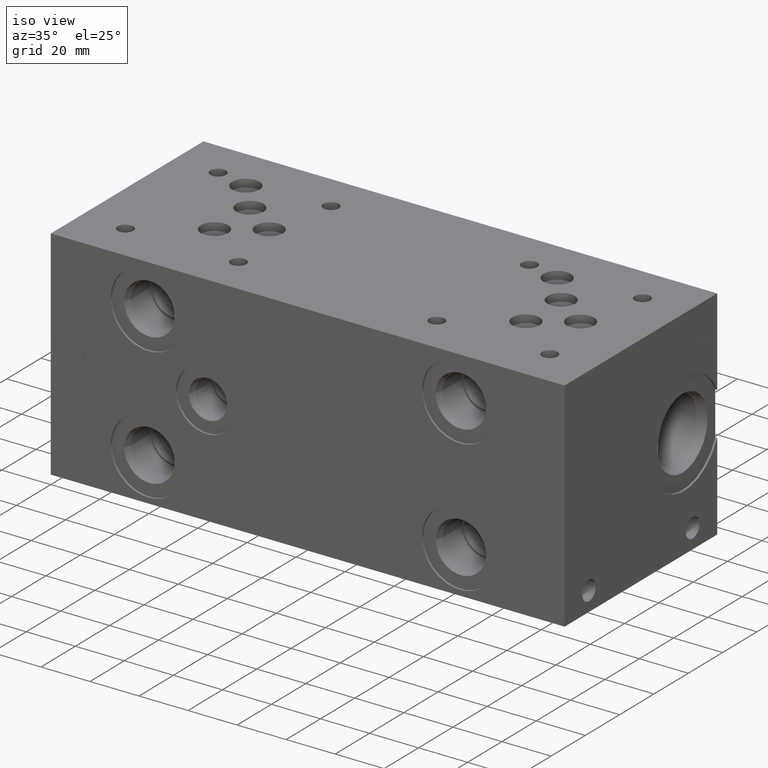
[diagram: clean part render]
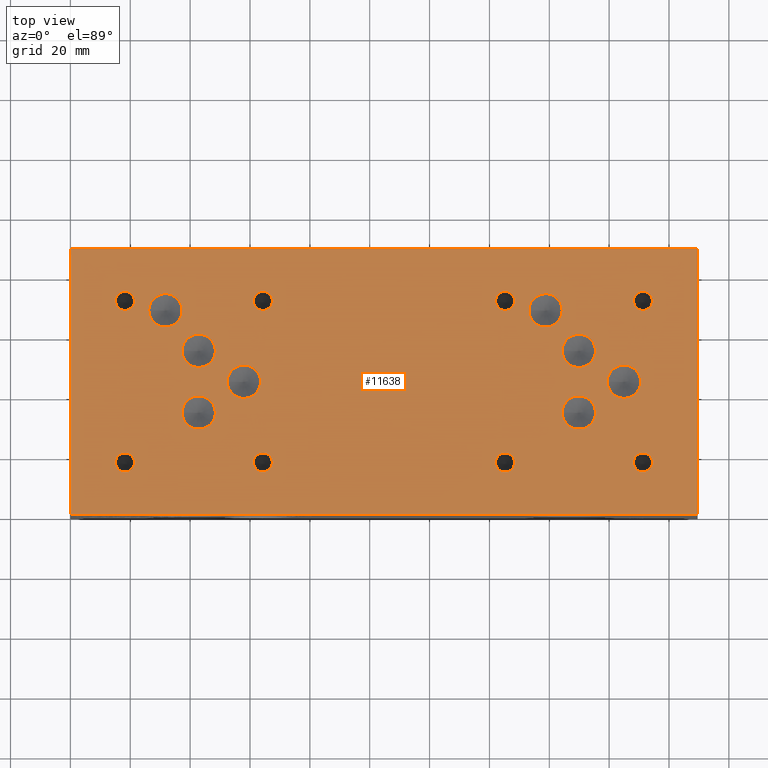
[diagram: tour spotlight — one face highlighted and labeled with its STEP entity id]
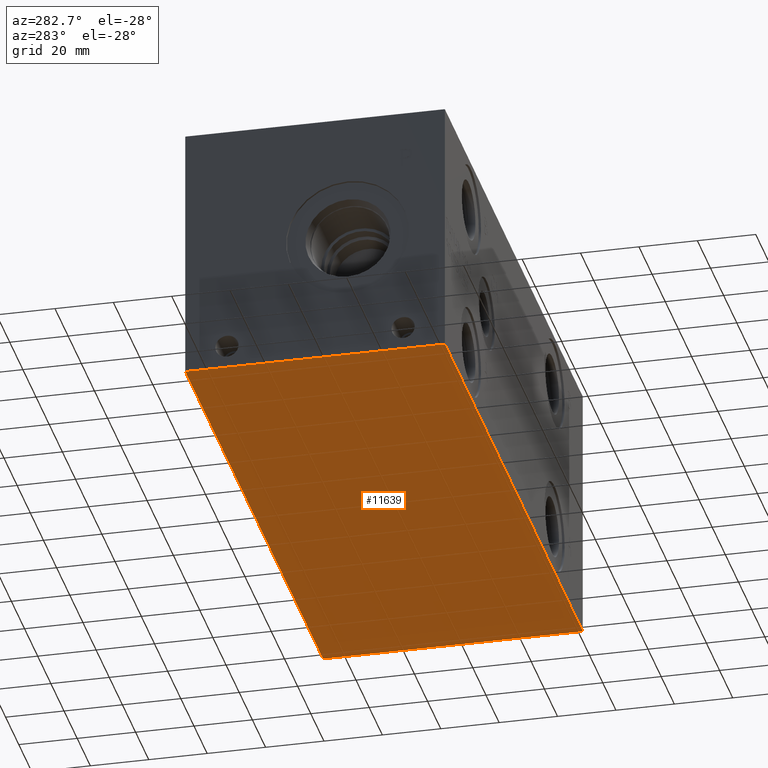
[diagram: tour spotlight — one face highlighted and labeled with its STEP entity id]
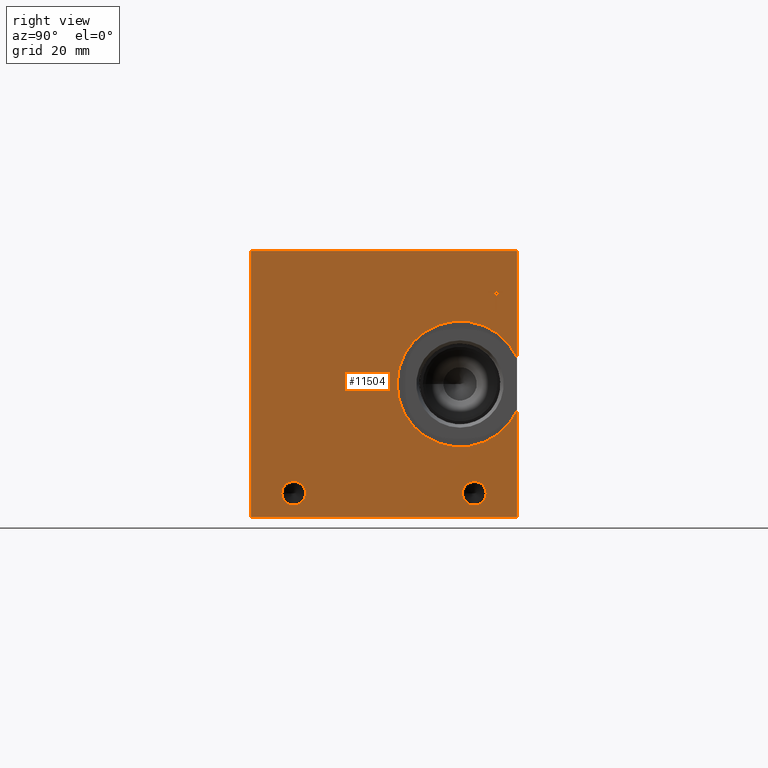
[diagram: tour spotlight — one face highlighted and labeled with its STEP entity id]
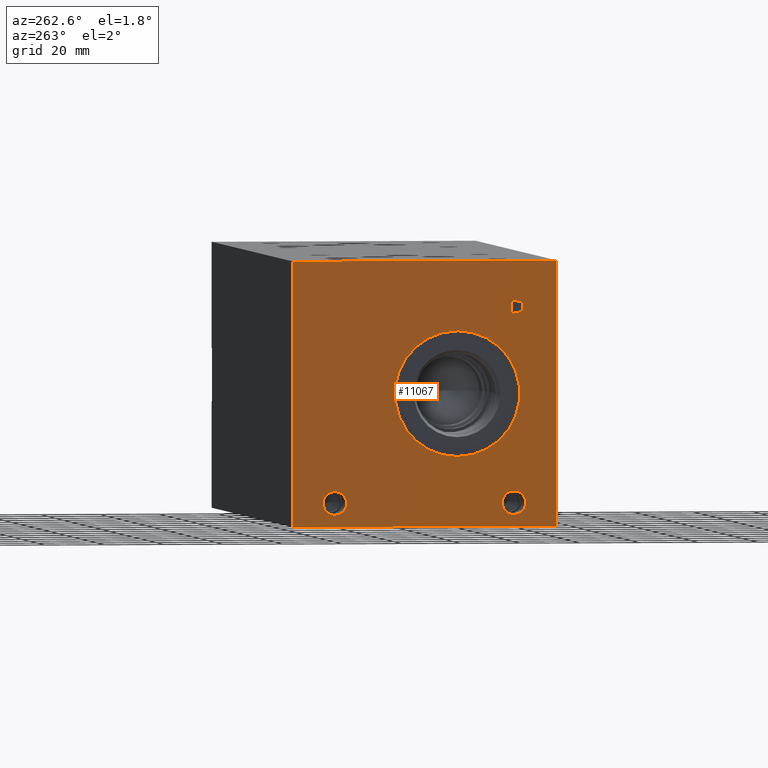
[diagram: tour spotlight — one face highlighted and labeled with its STEP entity id]
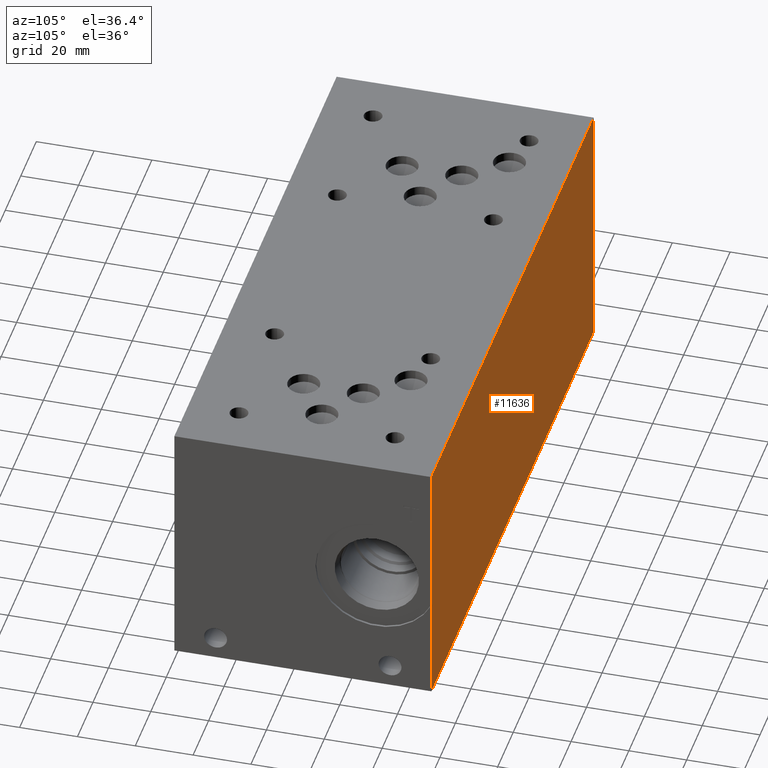
[diagram: tour spotlight — one face highlighted and labeled with its STEP entity id]
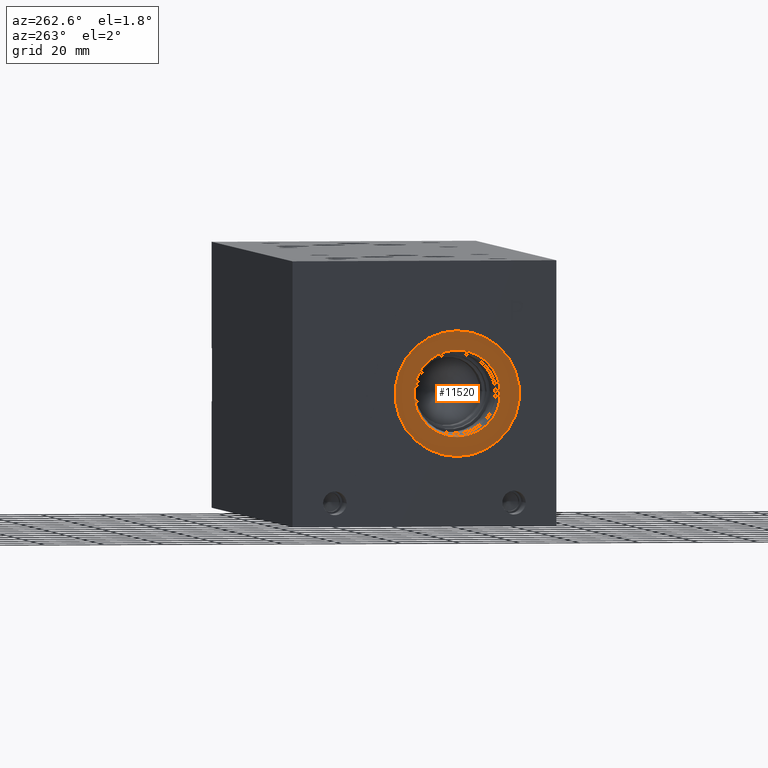
[diagram: tour spotlight — one face highlighted and labeled with its STEP entity id]
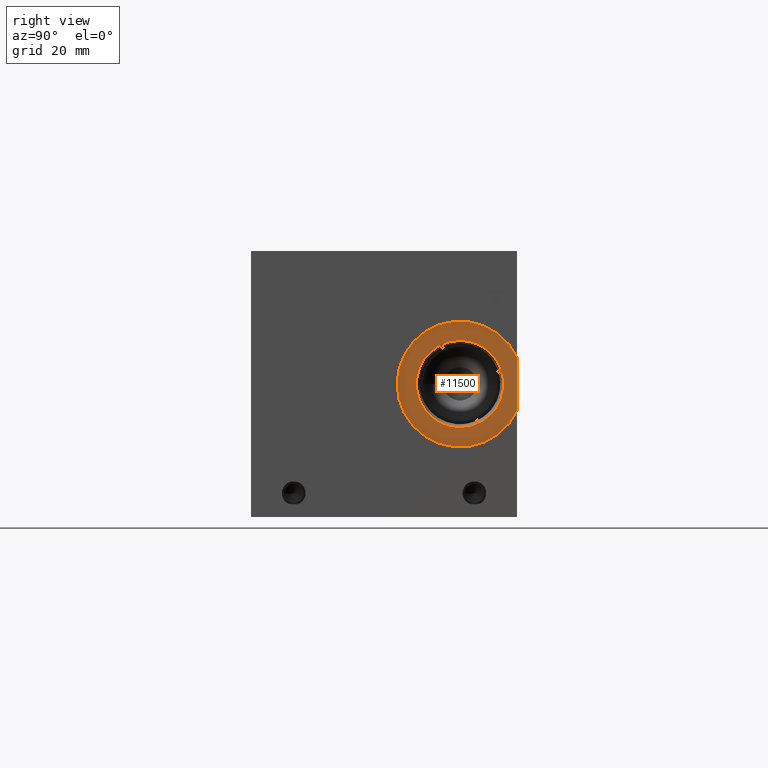
[diagram: tour spotlight — one face highlighted and labeled with its STEP entity id]
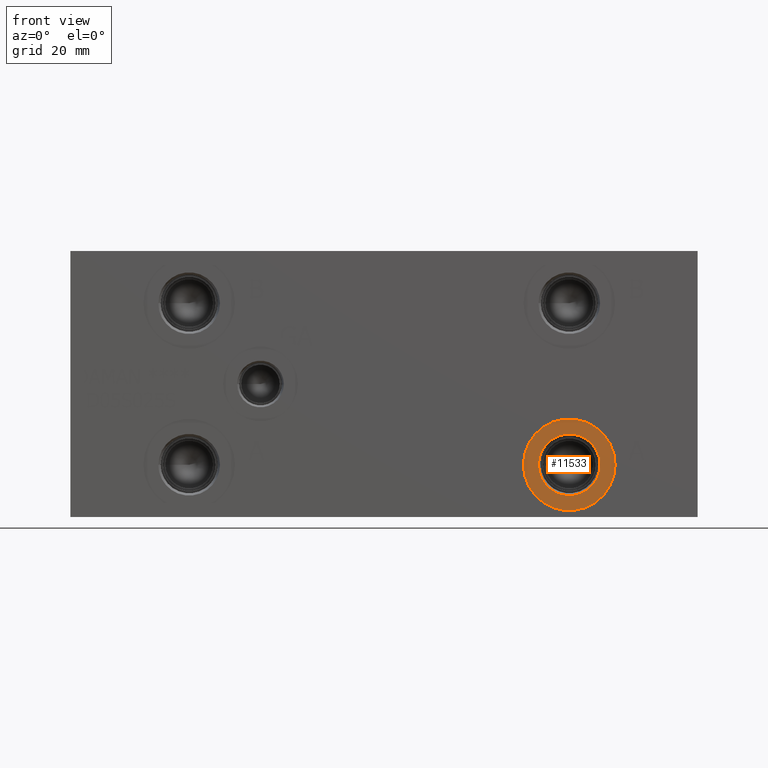
[diagram: tour spotlight — one face highlighted and labeled with its STEP entity id]
A machine part: a face-by-face anatomy tour. The part has 599 B-rep faces; the first image is the clean iso view, then the 8 largest visible faces are spotlighted one at a time (largest first), each with its STEP entity span.

Face 1 — top view, entity #11638. In plain terms, the highlighted planar face has unit normal (0, 0, 1).
Definition (entity closure, byte-faithful):
#300=CIRCLE('',#12213,3.175);
#301=CIRCLE('',#12214,3.175);
#307=CIRCLE('',#12224,3.175);
#308=CIRCLE('',#12225,3.175);
#314=CIRCLE('',#12235,3.175);
#315=CIRCLE('',#12236,3.175);
#321=CIRCLE('',#12246,3.175);
#322=CIRCLE('',#12247,3.175);
#325=CIRCLE('',#12253,5.5626);
#326=CIRCLE('',#12254,5.5626);
#329=CIRCLE('',#12259,5.5626);
#330=CIRCLE('',#12260,5.5626);
#333=CIRCLE('',#12265,5.5626);
#334=CIRCLE('',#12266,5.5626);
#337=CIRCLE('',#12271,5.5626);
#338=CIRCLE('',#12272,5.5626);
#341=CIRCLE('',#12277,5.5626);
#342=CIRCLE('',#12278,5.5626);
#345=CIRCLE('',#12283,5.5626);
#346=CIRCLE('',#12284,5.5626);
#349=CIRCLE('',#12289,5.5626);
#350=CIRCLE('',#12290,5.5626);
#353=CIRCLE('',#12295,5.5626);
#354=CIRCLE('',#12296,5.5626);
#360=CIRCLE('',#12305,3.175);
#361=CIRCLE('',#12306,3.175);
#367=CIRCLE('',#12316,3.175);
#368=CIRCLE('',#12317,3.175);
#374=CIRCLE('',#12327,3.175);
#375=CIRCLE('',#12328,3.175);
#381=CIRCLE('',#12338,3.175);
#382=CIRCLE('',#12339,3.175);
#459=FACE_BOUND('',#2225,.T.);
#460=FACE_BOUND('',#2226,.T.);
#461=FACE_BOUND('',#2227,.T.);
#462=FACE_BOUND('',#2228,.T.);
#463=FACE_BOUND('',#2229,.T.);
#464=FACE_BOUND('',#2230,.T.);
#465=FACE_BOUND('',#2231,.T.);
#466=FACE_BOUND('',#2232,.T.);
#467=FACE_BOUND('',#2233,.T.);
#468=FACE_BOUND('',#2234,.T.);
#469=FACE_BOUND('',#2235,.T.);
#470=FACE_BOUND('',#2236,.T.);
#471=FACE_BOUND('',#2237,.T.);
#472=FACE_BOUND('',#2238,.T.);
#473=FACE_BOUND('',#2239,.T.);
#474=FACE_BOUND('',#2240,.T.);
#1549=FACE_OUTER_BOUND('',#2224,.T.);
#2224=EDGE_LOOP('',(#10241,#10242,#10243,#10244));
#2225=EDGE_LOOP('',(#10245,#10246));
#2226=EDGE_LOOP('',(#10247,#10248));
#2227=EDGE_LOOP('',(#10249,#10250));
#2228=EDGE_LOOP('',(#10251,#10252));
#2229=EDGE_LOOP('',(#10253,#10254));
#2230=EDGE_LOOP('',(#10255,#10256));
#2231=EDGE_LOOP('',(#10257,#10258));
#2232=EDGE_LOOP('',(#10259,#10260));
#2233=EDGE_LOOP('',(#10261,#10262));
#2234=EDGE_LOOP('',(#10263,#10264));
#2235=EDGE_LOOP('',(#10265,#10266));
#2236=EDGE_LOOP('',(#10267,#10268));
#2237=EDGE_LOOP('',(#10269,#10270));
#2238=EDGE_LOOP('',(#10271,#10272));
#2239=EDGE_LOOP('',(#10273,#10274));
#2240=EDGE_LOOP('',(#10275,#10276));
#2300=LINE('',#15034,#3344);
#2561=LINE('',#17293,#3605);
#3175=LINE('',#19463,#4219);
#3285=LINE('',#20162,#4329);
#3344=VECTOR('',#12444,10.);
#3605=VECTOR('',#12841,10.);
#4219=VECTOR('',#13965,10.);
#4329=VECTOR('',#14769,10.);
#4380=VERTEX_POINT('',#15031);
#4381=VERTEX_POINT('',#15033);
#4695=VERTEX_POINT('',#17291);
#5196=VERTEX_POINT('',#19461);
#5341=VERTEX_POINT('',#19894);
#5342=VERTEX_POINT('',#19895);
#5349=VERTEX_POINT('',#19916);
#5350=VERTEX_POINT('',#19917);
#5357=VERTEX_POINT('',#19938);
#5358=VERTEX_POINT('',#19939);
#5365=VERTEX_POINT('',#19960);
#5366=VERTEX_POINT('',#19961);
#5370=VERTEX_POINT('',#19975);
#5371=VERTEX_POINT('',#19976);
#5375=VERTEX_POINT('',#19988);
#5376=VERTEX_POINT('',#19989);
#5380=VERTEX_POINT('',#20001);
#5381=VERTEX_POINT('',#20002);
#5385=VERTEX_POINT('',#20014);
#5386=VERTEX_POINT('',#20015);
#5390=VERTEX_POINT('',#20027);
#5391=VERTEX_POINT('',#20028);
#5395=VERTEX_POINT('',#20040);
#5396=VERTEX_POINT('',#20041);
#5400=VERTEX_POINT('',#20053);
#5401=VERTEX_POINT('',#20054);
#5405=VERTEX_POINT('',#20066);
#5406=VERTEX_POINT('',#20067);
#5413=VERTEX_POINT('',#20086);
#5414=VERTEX_POINT('',#20087);
#5421=VERTEX_POINT('',#20108);
#5422=VERTEX_POINT('',#20109);
#5429=VERTEX_POINT('',#20130);
#5430=VERTEX_POINT('',#20131);
#5437=VERTEX_POINT('',#20152);
#5438=VERTEX_POINT('',#20153);
#5513=EDGE_CURVE('',#4381,#4380,#2300,.T.);
#5982=EDGE_CURVE('',#4380,#4695,#2561,.T.);
#6727=EDGE_CURVE('',#4695,#5196,#3175,.T.);
#6929=EDGE_CURVE('',#5341,#5342,#300,.T.);
#6930=EDGE_CURVE('',#5342,#5341,#301,.T.);
#6939=EDGE_CURVE('',#5349,#5350,#307,.T.);
#6940=EDGE_CURVE('',#5350,#5349,#308,.T.);
#6949=EDGE_CURVE('',#5357,#5358,#314,.T.);
#6950=EDGE_CURVE('',#5358,#5357,#315,.T.);
#6959=EDGE_CURVE('',#5365,#5366,#321,.T.);
#6960=EDGE_CURVE('',#5366,#5365,#322,.T.);
#6966=EDGE_CURVE('',#5370,#5371,#325,.T.);
#6967=EDGE_CURVE('',#5371,#5370,#326,.T.);
#6972=EDGE_CURVE('',#5375,#5376,#329,.T.);
#6973=EDGE_CURVE('',#5376,#5375,#330,.T.);
#6978=EDGE_CURVE('',#5380,#5381,#333,.T.);
#6979=EDGE_CURVE('',#5381,#5380,#334,.T.);
#6984=EDGE_CURVE('',#5385,#5386,#337,.T.);
#6985=EDGE_CURVE('',#5386,#5385,#338,.T.);
#6990=EDGE_CURVE('',#5390,#5391,#341,.T.);
#6991=EDGE_CURVE('',#5391,#5390,#342,.T.);
#6996=EDGE_CURVE('',#5395,#5396,#345,.T.);
#6997=EDGE_CURVE('',#5396,#5395,#346,.T.);
#7002=EDGE_CURVE('',#5400,#5401,#349,.T.);
#7003=EDGE_CURVE('',#5401,#5400,#350,.T.);
#7008=EDGE_CURVE('',#5405,#5406,#353,.T.);
#7009=EDGE_CURVE('',#5406,#5405,#354,.T.);
#7017=EDGE_CURVE('',#5413,#5414,#360,.T.);
#7018=EDGE_CURVE('',#5414,#5413,#361,.T.);
#7027=EDGE_CURVE('',#5421,#5422,#367,.T.);
#7028=EDGE_CURVE('',#5422,#5421,#368,.T.);
#7037=EDGE_CURVE('',#5429,#5430,#374,.T.);
#7038=EDGE_CURVE('',#5430,#5429,#375,.T.);
#7047=EDGE_CURVE('',#5437,#5438,#381,.T.);
#7048=EDGE_CURVE('',#5438,#5437,#382,.T.);
#7052=EDGE_CURVE('',#5196,#4381,#3285,.T.);
#10241=ORIENTED_EDGE('',*,*,#5982,.T.);
#10242=ORIENTED_EDGE('',*,*,#6727,.T.);
#10243=ORIENTED_EDGE('',*,*,#7052,.T.);
#10244=ORIENTED_EDGE('',*,*,#5513,.T.);
#10245=ORIENTED_EDGE('',*,*,#6929,.T.);
#10246=ORIENTED_EDGE('',*,*,#6930,.T.);
#10247=ORIENTED_EDGE('',*,*,#6939,.T.);
#10248=ORIENTED_EDGE('',*,*,#6940,.T.);
#10249=ORIENTED_EDGE('',*,*,#6949,.T.);
#10250=ORIENTED_EDGE('',*,*,#6950,.T.);
#10251=ORIENTED_EDGE('',*,*,#6959,.T.);
#10252=ORIENTED_EDGE('',*,*,#6960,.T.);
#10253=ORIENTED_EDGE('',*,*,#6966,.T.);
#10254=ORIENTED_EDGE('',*,*,#6967,.T.);
#10255=ORIENTED_EDGE('',*,*,#6972,.T.);
#10256=ORIENTED_EDGE('',*,*,#6973,.T.);
#10257=ORIENTED_EDGE('',*,*,#6978,.T.);
#10258=ORIENTED_EDGE('',*,*,#6979,.T.);
#10259=ORIENTED_EDGE('',*,*,#6984,.T.);
#10260=ORIENTED_EDGE('',*,*,#6985,.T.);
#10261=ORIENTED_EDGE('',*,*,#6990,.T.);
#10262=ORIENTED_EDGE('',*,*,#6991,.T.);
#10263=ORIENTED_EDGE('',*,*,#6996,.T.);
#10264=ORIENTED_EDGE('',*,*,#6997,.T.);
#10265=ORIENTED_EDGE('',*,*,#7002,.T.);
#10266=ORIENTED_EDGE('',*,*,#7003,.T.);
#10267=ORIENTED_EDGE('',*,*,#7008,.T.);
#10268=ORIENTED_EDGE('',*,*,#7009,.T.);
#10269=ORIENTED_EDGE('',*,*,#7017,.T.);
#10270=ORIENTED_EDGE('',*,*,#7018,.T.);
#10271=ORIENTED_EDGE('',*,*,#7027,.T.);
#10272=ORIENTED_EDGE('',*,*,#7028,.T.);
#10273=ORIENTED_EDGE('',*,*,#7037,.T.);
#10274=ORIENTED_EDGE('',*,*,#7038,.T.);
#10275=ORIENTED_EDGE('',*,*,#7047,.T.);
#10276=ORIENTED_EDGE('',*,*,#7048,.T.);
#10602=PLANE('',#12344);
#11638=ADVANCED_FACE('',(#1549,#459,#460,#461,#462,#463,#464,#465,#466,
#467,#468,#469,#470,#471,#472,#473,#474),#10602,.T.);
#12213=AXIS2_PLACEMENT_3D('',#19896,#14469,#14470);
#12214=AXIS2_PLACEMENT_3D('',#19897,#14471,#14472);
#12224=AXIS2_PLACEMENT_3D('',#19918,#14494,#14495);
#12225=AXIS2_PLACEMENT_3D('',#19919,#14496,#14497);
#12235=AXIS2_PLACEMENT_3D('',#19940,#14519,#14520);
#12236=AXIS2_PLACEMENT_3D('',#19941,#14521,#14522);
#12246=AXIS2_PLACEMENT_3D('',#19962,#14544,#14545);
#12247=AXIS2_PLACEMENT_3D('',#19963,#14546,#14547);
#12253=AXIS2_PLACEMENT_3D('',#19977,#14561,#14562);
#12254=AXIS2_PLACEMENT_3D('',#19978,#14563,#14564);
#12259=AXIS2_PLACEMENT_3D('',#19990,#14575,#14576);
#12260=AXIS2_PLACEMENT_3D('',#19991,#14577,#14578);
#12265=AXIS2_PLACEMENT_3D('',#20003,#14589,#14590);
#12266=AXIS2_PLACEMENT_3D('',#20004,#14591,#14592);
#12271=AXIS2_PLACEMENT_3D('',#20016,#14603,#14604);
#12272=AXIS2_PLACEMENT_3D('',#20017,#14605,#14606);
#12277=AXIS2_PLACEMENT_3D('',#20029,#14617,#14618);
#12278=AXIS2_PLACEMENT_3D('',#20030,#14619,#14620);
#12283=AXIS2_PLACEMENT_3D('',#20042,#14631,#14632);
#12284=AXIS2_PLACEMENT_3D('',#20043,#14633,#14634);
#12289=AXIS2_PLACEMENT_3D('',#20055,#14645,#14646);
#12290=AXIS2_PLACEMENT_3D('',#20056,#14647,#14648);
#12295=AXIS2_PLACEMENT_3D('',#20068,#14659,#14660);
#12296=AXIS2_PLACEMENT_3D('',#20069,#14661,#14662);
#12305=AXIS2_PLACEMENT_3D('',#20088,#14681,#14682);
#12306=AXIS2_PLACEMENT_3D('',#20089,#14683,#14684);
#12316=AXIS2_PLACEMENT_3D('',#20110,#14706,#14707);
#12317=AXIS2_PLACEMENT_3D('',#20111,#14708,#14709);
#12327=AXIS2_PLACEMENT_3D('',#20132,#14731,#14732);
#12328=AXIS2_PLACEMENT_3D('',#20133,#14733,#14734);
#12338=AXIS2_PLACEMENT_3D('',#20154,#14756,#14757);
#12339=AXIS2_PLACEMENT_3D('',#20155,#14758,#14759);
#12344=AXIS2_PLACEMENT_3D('',#20164,#14772,#14773);
#12444=DIRECTION('',(0.,-1.,0.));
#12841=DIRECTION('',(1.,0.,0.));
#13965=DIRECTION('',(0.,1.,0.));
#14469=DIRECTION('center_axis',(0.,0.,-1.));
#14470=DIRECTION('ref_axis',(1.,0.,0.));
#14471=DIRECTION('center_axis',(0.,0.,-1.));
#14472=DIRECTION('ref_axis',(1.,0.,0.));
#14494=DIRECTION('center_axis',(0.,0.,-1.));
#14495=DIRECTION('ref_axis',(1.,0.,0.));
#14496=DIRECTION('center_axis',(0.,0.,-1.));
#14497=DIRECTION('ref_axis',(1.,0.,0.));
#14519=DIRECTION('center_axis',(0.,0.,-1.));
#14520=DIRECTION('ref_axis',(1.,0.,0.));
#14521=DIRECTION('center_axis',(0.,0.,-1.));
#14522=DIRECTION('ref_axis',(1.,0.,0.));
#14544=DIRECTION('center_axis',(0.,0.,-1.));
#14545=DIRECTION('ref_axis',(1.,0.,0.));
#14546=DIRECTION('center_axis',(0.,0.,-1.));
#14547=DIRECTION('ref_axis',(1.,0.,0.));
#14561=DIRECTION('center_axis',(0.,0.,-1.));
#14562=DIRECTION('ref_axis',(1.,0.,0.));
#14563=DIRECTION('center_axis',(0.,0.,-1.));
#14564=DIRECTION('ref_axis',(1.,0.,0.));
#14575=DIRECTION('center_axis',(0.,0.,-1.));
#14576=DIRECTION('ref_axis',(1.,0.,0.));
#14577=DIRECTION('center_axis',(0.,0.,-1.));
#14578=DIRECTION('ref_axis',(1.,0.,0.));
#14589=DIRECTION('center_axis',(0.,0.,-1.));
#14590=DIRECTION('ref_axis',(1.,0.,0.));
#14591=DIRECTION('center_axis',(0.,0.,-1.));
#14592=DIRECTION('ref_axis',(1.,0.,0.));
#14603=DIRECTION('center_axis',(0.,0.,-1.));
#14604=DIRECTION('ref_axis',(1.,0.,0.));
#14605=DIRECTION('center_axis',(0.,0.,-1.));
#14606=DIRECTION('ref_axis',(1.,0.,0.));
#14617=DIRECTION('center_axis',(0.,0.,-1.));
#14618=DIRECTION('ref_axis',(1.,0.,0.));
#14619=DIRECTION('center_axis',(0.,0.,-1.));
#14620=DIRECTION('ref_axis',(1.,0.,0.));
#14631=DIRECTION('center_axis',(0.,0.,-1.));
#14632=DIRECTION('ref_axis',(1.,0.,0.));
#14633=DIRECTION('center_axis',(0.,0.,-1.));
#14634=DIRECTION('ref_axis',(1.,0.,0.));
#14645=DIRECTION('center_axis',(0.,0.,-1.));
#14646=DIRECTION('ref_axis',(1.,0.,0.));
#14647=DIRECTION('center_axis',(0.,0.,-1.));
#14648=DIRECTION('ref_axis',(1.,0.,0.));
#14659=DIRECTION('center_axis',(0.,0.,-1.));
#14660=DIRECTION('ref_axis',(1.,0.,0.));
#14661=DIRECTION('center_axis',(0.,0.,-1.));
#14662=DIRECTION('ref_axis',(1.,0.,0.));
#14681=DIRECTION('center_axis',(0.,0.,-1.));
#14682=DIRECTION('ref_axis',(1.,0.,0.));
#14683=DIRECTION('center_axis',(0.,0.,-1.));
#14684=DIRECTION('ref_axis',(1.,0.,0.));
#14706=DIRECTION('center_axis',(0.,0.,-1.));
#14707=DIRECTION('ref_axis',(1.,0.,0.));
#14708=DIRECTION('center_axis',(0.,0.,-1.));
#14709=DIRECTION('ref_axis',(1.,0.,0.));
#14731=DIRECTION('center_axis',(0.,0.,-1.));
#14732=DIRECTION('ref_axis',(1.,0.,0.));
#14733=DIRECTION('center_axis',(0.,0.,-1.));
#14734=DIRECTION('ref_axis',(1.,0.,0.));
#14756=DIRECTION('center_axis',(0.,0.,-1.));
#14757=DIRECTION('ref_axis',(1.,0.,0.));
#14758=DIRECTION('center_axis',(0.,0.,-1.));
#14759=DIRECTION('ref_axis',(1.,0.,0.));
#14769=DIRECTION('',(-1.,0.,0.));
#14772=DIRECTION('center_axis',(0.,0.,1.));
#14773=DIRECTION('ref_axis',(1.,0.,0.));
#15031=CARTESIAN_POINT('',(0.,0.,88.9));
#15033=CARTESIAN_POINT('',(0.,88.9,88.9));
#15034=CARTESIAN_POINT('',(0.,88.9,88.9));
#17291=CARTESIAN_POINT('',(209.55,0.,88.9));
#17293=CARTESIAN_POINT('',(0.,0.,88.9));
#19461=CARTESIAN_POINT('',(209.55,88.9,88.9));
#19463=CARTESIAN_POINT('',(209.55,0.,88.9));
#19894=CARTESIAN_POINT('',(194.4624,17.4752,88.9));
#19895=CARTESIAN_POINT('',(188.1124,17.4752,88.9));
#19896=CARTESIAN_POINT('Origin',(191.2874,17.4752,88.9));
#19897=CARTESIAN_POINT('Origin',(191.2874,17.4752,88.9));
#19916=CARTESIAN_POINT('',(148.4122,71.4502,88.9));
#19917=CARTESIAN_POINT('',(142.0622,71.4502,88.9));
#19918=CARTESIAN_POINT('Origin',(145.2372,71.4502,88.9));
#19919=CARTESIAN_POINT('Origin',(145.2372,71.4502,88.9));
#19938=CARTESIAN_POINT('',(194.4624,71.4502,88.9));
#19939=CARTESIAN_POINT('',(188.1124,71.4502,88.9));
#19940=CARTESIAN_POINT('Origin',(191.2874,71.4502,88.9));
#19941=CARTESIAN_POINT('Origin',(191.2874,71.4502,88.9));
#19960=CARTESIAN_POINT('',(148.4122,17.4752,88.9));
#19961=CARTESIAN_POINT('',(142.0622,17.4752,88.9));
#19962=CARTESIAN_POINT('Origin',(145.2372,17.4752,88.9));
#19963=CARTESIAN_POINT('Origin',(145.2372,17.4752,88.9));
#19975=CARTESIAN_POINT('',(175.4378,54.7624,88.9));
#19976=CARTESIAN_POINT('',(164.3126,54.7624,88.9));
#19977=CARTESIAN_POINT('Origin',(169.8752,54.7624,88.9));
#19978=CARTESIAN_POINT('Origin',(169.8752,54.7624,88.9));
#19988=CARTESIAN_POINT('',(190.5254,44.45,88.9));
#19989=CARTESIAN_POINT('',(179.4002,44.45,88.9));
#19990=CARTESIAN_POINT('Origin',(184.9628,44.45,88.9));
#19991=CARTESIAN_POINT('Origin',(184.9628,44.45,88.9));
#20001=CARTESIAN_POINT('',(48.4251,54.76748,88.9));
#20002=CARTESIAN_POINT('',(37.2999,54.76748,88.9));
#20003=CARTESIAN_POINT('Origin',(42.8625,54.76748,88.9));
#20004=CARTESIAN_POINT('Origin',(42.8625,54.76748,88.9));
#20014=CARTESIAN_POINT('',(63.5254,44.45,88.9));
#20015=CARTESIAN_POINT('',(52.4002,44.45,88.9));
#20016=CARTESIAN_POINT('Origin',(57.9628,44.45,88.9));
#20017=CARTESIAN_POINT('Origin',(57.9628,44.45,88.9));
#20027=CARTESIAN_POINT('',(37.3126,68.2752,88.9));
#20028=CARTESIAN_POINT('',(26.1874,68.2752,88.9));
#20029=CARTESIAN_POINT('Origin',(31.75,68.2752,88.9));
#20030=CARTESIAN_POINT('Origin',(31.75,68.2752,88.9));
#20040=CARTESIAN_POINT('',(48.43018,34.13252,88.9));
#20041=CARTESIAN_POINT('',(37.30498,34.13252,88.9));
#20042=CARTESIAN_POINT('Origin',(42.86758,34.13252,88.9));
#20043=CARTESIAN_POINT('Origin',(42.86758,34.13252,88.9));
#20053=CARTESIAN_POINT('',(164.3126,68.2752,88.9));
#20054=CARTESIAN_POINT('',(153.1874,68.2752,88.9));
#20055=CARTESIAN_POINT('Origin',(158.75,68.2752,88.9));
#20056=CARTESIAN_POINT('Origin',(158.75,68.2752,88.9));
#20066=CARTESIAN_POINT('',(175.4378,34.1376,88.9));
#20067=CARTESIAN_POINT('',(164.3126,34.1376,88.9));
#20068=CARTESIAN_POINT('Origin',(169.8752,34.1376,88.9));
#20069=CARTESIAN_POINT('Origin',(169.8752,34.1376,88.9));
#20086=CARTESIAN_POINT('',(67.4624,17.4879,88.9));
#20087=CARTESIAN_POINT('',(61.1124,17.4879,88.9));
#20088=CARTESIAN_POINT('Origin',(64.2874,17.4879,88.9));
#20089=CARTESIAN_POINT('Origin',(64.2874,17.4879,88.9));
#20108=CARTESIAN_POINT('',(21.4122,71.4502,88.9));
#20109=CARTESIAN_POINT('',(15.0622,71.4502,88.9));
#20110=CARTESIAN_POINT('Origin',(18.2372,71.4502,88.9));
#20111=CARTESIAN_POINT('Origin',(18.2372,71.4502,88.9));
#20130=CARTESIAN_POINT('',(67.4624,71.4502,88.9));
#20131=CARTESIAN_POINT('',(61.1124,71.4502,88.9));
#20132=CARTESIAN_POINT('Origin',(64.2874,71.4502,88.9));
#20133=CARTESIAN_POINT('Origin',(64.2874,71.4502,88.9));
#20152=CARTESIAN_POINT('',(21.4122,17.4752,88.9));
#20153=CARTESIAN_POINT('',(15.0622,17.4752,88.9));
#20154=CARTESIAN_POINT('Origin',(18.2372,17.4752,88.9));
#20155=CARTESIAN_POINT('Origin',(18.2372,17.4752,88.9));
#20162=CARTESIAN_POINT('',(209.55,88.9,88.9));
#20164=CARTESIAN_POINT('Origin',(104.775,44.45,88.9));

Face 2 — auxiliary view, entity #11639. In plain terms, the highlighted planar face has unit normal (0, 0, 1).
Definition (entity closure, byte-faithful):
#1550=FACE_OUTER_BOUND('',#2241,.T.);
#2241=EDGE_LOOP('',(#10277,#10278,#10279,#10280));
#2298=LINE('',#15030,#3342);
#2559=LINE('',#17290,#3603);
#3176=LINE('',#19465,#4220);
#3284=LINE('',#20161,#4328);
#3342=VECTOR('',#12442,10.);
#3603=VECTOR('',#12839,10.);
#4220=VECTOR('',#13966,10.);
#4328=VECTOR('',#14768,10.);
#4378=VERTEX_POINT('',#15028);
#4379=VERTEX_POINT('',#15029);
#4694=VERTEX_POINT('',#17289);
#5197=VERTEX_POINT('',#19464);
#5511=EDGE_CURVE('',#4378,#4379,#2298,.T.);
#5980=EDGE_CURVE('',#4379,#4694,#2559,.T.);
#6728=EDGE_CURVE('',#4694,#5197,#3176,.T.);
#7051=EDGE_CURVE('',#5197,#4378,#3284,.T.);
#10277=ORIENTED_EDGE('',*,*,#5980,.F.);
#10278=ORIENTED_EDGE('',*,*,#5511,.F.);
#10279=ORIENTED_EDGE('',*,*,#7051,.F.);
#10280=ORIENTED_EDGE('',*,*,#6728,.F.);
#10603=PLANE('',#12345);
#11639=ADVANCED_FACE('',(#1550),#10603,.F.);
#12345=AXIS2_PLACEMENT_3D('',#20165,#14774,#14775);
#12442=DIRECTION('',(0.,-1.,0.));
#12839=DIRECTION('',(1.,0.,0.));
#13966=DIRECTION('',(0.,1.,0.));
#14768=DIRECTION('',(-1.,0.,0.));
#14774=DIRECTION('center_axis',(0.,0.,1.));
#14775=DIRECTION('ref_axis',(1.,0.,0.));
#15028=CARTESIAN_POINT('',(0.,88.9,0.));
#15029=CARTESIAN_POINT('',(0.,0.,0.));
#15030=CARTESIAN_POINT('',(0.,88.9,0.));
#17289=CARTESIAN_POINT('',(209.55,0.,0.));
#17290=CARTESIAN_POINT('',(0.,0.,0.));
#19464=CARTESIAN_POINT('',(209.55,88.9,0.));
#19465=CARTESIAN_POINT('',(209.55,0.,0.));
#20161=CARTESIAN_POINT('',(209.55,88.9,0.));
#20165=CARTESIAN_POINT('Origin',(104.775,44.45,0.));

Face 3 — right view, entity #11504. In plain terms, the highlighted planar face has unit normal (1, 0, 0).
Definition (entity closure, byte-faithful):
#161=CIRCLE('',#11984,21.0185);
#168=CIRCLE('',#11996,3.9624);
#169=CIRCLE('',#11997,3.9624);
#170=CIRCLE('',#11998,3.9624);
#171=CIRCLE('',#11999,3.9624);
#432=FACE_BOUND('',#2064,.T.);
#433=FACE_BOUND('',#2065,.T.);
#434=FACE_BOUND('',#2066,.T.);
#1415=FACE_OUTER_BOUND('',#2063,.T.);
#2063=EDGE_LOOP('',(#9583,#9584,#9585,#9586,#9587,#9588));
#2064=EDGE_LOOP('',(#9589,#9590,#9591,#9592,#9593,#9594,#9595,#9596));
#2065=EDGE_LOOP('',(#9597,#9598));
#2066=EDGE_LOOP('',(#9599,#9600));
#2242=LINE('',#14780,#3286);
#2246=LINE('',#14788,#3290);
#2249=LINE('',#14794,#3293);
#2252=LINE('',#14800,#3296);
#2255=LINE('',#14806,#3299);
#2258=LINE('',#14812,#3302);
#2261=LINE('',#14818,#3305);
#2264=LINE('',#14823,#3308);
#2560=LINE('',#17292,#3604);
#3174=LINE('',#19462,#4218);
#3175=LINE('',#19463,#4219);
#3176=LINE('',#19465,#4220);
#3177=LINE('',#19466,#4221);
#3286=VECTOR('',#12350,10.);
#3290=VECTOR('',#12356,10.);
#3293=VECTOR('',#12361,10.);
#3296=VECTOR('',#12366,10.);
#3299=VECTOR('',#12371,10.);
#3302=VECTOR('',#12376,10.);
#3305=VECTOR('',#12381,10.);
#3308=VECTOR('',#12386,10.);
#3604=VECTOR('',#12840,10.);
#4218=VECTOR('',#13964,10.);
#4219=VECTOR('',#13965,10.);
#4220=VECTOR('',#13966,10.);
#4221=VECTOR('',#13967,10.);
#4330=VERTEX_POINT('',#14778);
#4331=VERTEX_POINT('',#14779);
#4334=VERTEX_POINT('',#14787);
#4336=VERTEX_POINT('',#14793);
#4338=VERTEX_POINT('',#14799);
#4340=VERTEX_POINT('',#14805);
#4342=VERTEX_POINT('',#14811);
#4344=VERTEX_POINT('',#14817);
#4694=VERTEX_POINT('',#17289);
#4695=VERTEX_POINT('',#17291);
#5187=VERTEX_POINT('',#19433);
#5189=VERTEX_POINT('',#19437);
#5196=VERTEX_POINT('',#19461);
#5197=VERTEX_POINT('',#19464);
#5198=VERTEX_POINT('',#19467);
#5199=VERTEX_POINT('',#19468);
#5200=VERTEX_POINT('',#19471);
#5201=VERTEX_POINT('',#19472);
#5439=EDGE_CURVE('',#4330,#4331,#2242,.T.);
#5443=EDGE_CURVE('',#4334,#4330,#2246,.T.);
#5446=EDGE_CURVE('',#4336,#4334,#2249,.T.);
#5449=EDGE_CURVE('',#4338,#4336,#2252,.T.);
#5452=EDGE_CURVE('',#4340,#4338,#2255,.T.);
#5455=EDGE_CURVE('',#4342,#4340,#2258,.T.);
#5458=EDGE_CURVE('',#4344,#4342,#2261,.T.);
#5461=EDGE_CURVE('',#4331,#4344,#2264,.T.);
#5981=EDGE_CURVE('',#4694,#4695,#2560,.T.);
#6715=EDGE_CURVE('',#5187,#5189,#161,.T.);
#6726=EDGE_CURVE('',#5189,#5196,#3174,.T.);
#6727=EDGE_CURVE('',#4695,#5196,#3175,.T.);
#6728=EDGE_CURVE('',#4694,#5197,#3176,.T.);
#6729=EDGE_CURVE('',#5197,#5187,#3177,.T.);
#6730=EDGE_CURVE('',#5198,#5199,#168,.T.);
#6731=EDGE_CURVE('',#5199,#5198,#169,.T.);
#6732=EDGE_CURVE('',#5200,#5201,#170,.T.);
#6733=EDGE_CURVE('',#5201,#5200,#171,.T.);
#9583=ORIENTED_EDGE('',*,*,#6715,.T.);
#9584=ORIENTED_EDGE('',*,*,#6726,.T.);
#9585=ORIENTED_EDGE('',*,*,#6727,.F.);
#9586=ORIENTED_EDGE('',*,*,#5981,.F.);
#9587=ORIENTED_EDGE('',*,*,#6728,.T.);
#9588=ORIENTED_EDGE('',*,*,#6729,.T.);
#9589=ORIENTED_EDGE('',*,*,#5439,.T.);
#9590=ORIENTED_EDGE('',*,*,#5461,.T.);
#9591=ORIENTED_EDGE('',*,*,#5458,.T.);
#9592=ORIENTED_EDGE('',*,*,#5455,.T.);
#9593=ORIENTED_EDGE('',*,*,#5452,.T.);
#9594=ORIENTED_EDGE('',*,*,#5449,.T.);
#9595=ORIENTED_EDGE('',*,*,#5446,.T.);
#9596=ORIENTED_EDGE('',*,*,#5443,.T.);
#9597=ORIENTED_EDGE('',*,*,#6730,.T.);
#9598=ORIENTED_EDGE('',*,*,#6731,.T.);
#9599=ORIENTED_EDGE('',*,*,#6732,.T.);
#9600=ORIENTED_EDGE('',*,*,#6733,.T.);
#10574=PLANE('',#11995);
#11504=ADVANCED_FACE('',(#1415,#432,#433,#434),#10574,.T.);
#11984=AXIS2_PLACEMENT_3D('',#19439,#13936,#13937);
#11995=AXIS2_PLACEMENT_3D('',#19460,#13962,#13963);
#11996=AXIS2_PLACEMENT_3D('',#19469,#13968,#13969);
#11997=AXIS2_PLACEMENT_3D('',#19470,#13970,#13971);
#11998=AXIS2_PLACEMENT_3D('',#19473,#13972,#13973);
#11999=AXIS2_PLACEMENT_3D('',#19474,#13974,#13975);
#12350=DIRECTION('',(0.,-1.,0.));
#12356=DIRECTION('',(0.,0.,-1.));
#12361=DIRECTION('',(0.,-1.,0.));
#12366=DIRECTION('',(0.,0.,-1.));
#12371=DIRECTION('',(0.,1.,0.));
#12376=DIRECTION('',(0.,0.,1.));
#12381=DIRECTION('',(0.,-1.,0.));
#12386=DIRECTION('',(0.,0.,1.));
#12840=DIRECTION('',(0.,0.,1.));
#13936=DIRECTION('center_axis',(-1.,0.,0.));
#13937=DIRECTION('ref_axis',(0.,0.,-1.));
#13962=DIRECTION('center_axis',(1.,0.,0.));
#13963=DIRECTION('ref_axis',(0.,1.,0.));
#13964=DIRECTION('',(0.,0.,1.));
#13965=DIRECTION('',(0.,1.,0.));
#13966=DIRECTION('',(0.,1.,0.));
#13967=DIRECTION('',(0.,0.,1.));
#13968=DIRECTION('center_axis',(-1.,0.,0.));
#13969=DIRECTION('ref_axis',(0.,1.,0.));
#13970=DIRECTION('center_axis',(-1.,0.,0.));
#13971=DIRECTION('ref_axis',(0.,1.,0.));
#13972=DIRECTION('center_axis',(-1.,0.,0.));
#13973=DIRECTION('ref_axis',(0.,1.,0.));
#13974=DIRECTION('center_axis',(-1.,0.,0.));
#13975=DIRECTION('ref_axis',(0.,1.,0.));
#14778=CARTESIAN_POINT('',(209.55,82.344165271453,69.05625));
#14779=CARTESIAN_POINT('',(209.55,81.5002430799135,69.05625));
#14780=CARTESIAN_POINT('',(209.55,41.1720826357265,69.05625));
#14787=CARTESIAN_POINT('',(209.55,82.344165271453,74.6549533194816));
#14788=CARTESIAN_POINT('',(209.55,82.344165271453,37.3274766597408));
#14793=CARTESIAN_POINT('',(209.55,84.4745542183881,74.6549533194816));
#14794=CARTESIAN_POINT('',(209.55,42.237277109194,74.6549533194816));
#14799=CARTESIAN_POINT('',(209.55,84.4745542183881,75.4062499046326));
#14800=CARTESIAN_POINT('',(209.55,84.4745542183881,37.7031249523163));
#14805=CARTESIAN_POINT('',(209.55,79.3698541329784,75.4062499046326));
#14806=CARTESIAN_POINT('',(209.55,39.6849270664892,75.4062499046326));
#14811=CARTESIAN_POINT('',(209.55,79.3698541329784,74.6549533194816));
#14812=CARTESIAN_POINT('',(209.55,79.3698541329784,37.3274766597408));
#14817=CARTESIAN_POINT('',(209.55,81.5002430799135,74.6549533194816));
#14818=CARTESIAN_POINT('',(209.55,40.7501215399568,74.6549533194816));
#14823=CARTESIAN_POINT('',(209.55,81.5002430799135,34.528125));
#17289=CARTESIAN_POINT('',(209.55,0.,0.));
#17291=CARTESIAN_POINT('',(209.55,0.,88.9));
#17292=CARTESIAN_POINT('',(209.55,0.,0.));
#19433=CARTESIAN_POINT('',(209.55,88.9,35.5688490469985));
#19437=CARTESIAN_POINT('',(209.55,88.9,53.3311509530015));
#19439=CARTESIAN_POINT('Origin',(209.55,69.85,44.45));
#19460=CARTESIAN_POINT('Origin',(209.55,0.,0.));
#19461=CARTESIAN_POINT('',(209.55,88.9,88.9));
#19462=CARTESIAN_POINT('',(209.55,88.9,0.));
#19463=CARTESIAN_POINT('',(209.55,0.,88.9));
#19464=CARTESIAN_POINT('',(209.55,88.9,0.));
#19465=CARTESIAN_POINT('',(209.55,0.,0.));
#19466=CARTESIAN_POINT('',(209.55,88.9,0.));
#19467=CARTESIAN_POINT('',(209.55,78.5876,7.9248));
#19468=CARTESIAN_POINT('',(209.55,70.6628,7.9248));
#19469=CARTESIAN_POINT('Origin',(209.55,74.6252,7.9248));
#19470=CARTESIAN_POINT('Origin',(209.55,74.6252,7.9248));
#19471=CARTESIAN_POINT('',(209.55,18.2372,7.9248));
#19472=CARTESIAN_POINT('',(209.55,10.3124,7.9248));
#19473=CARTESIAN_POINT('Origin',(209.55,14.2748,7.9248));
#19474=CARTESIAN_POINT('Origin',(209.55,14.2748,7.9248));

Face 4 — auxiliary view, entity #11067. In plain terms, the highlighted planar face has unit normal (-1, 0, 0).
Definition (entity closure, byte-faithful):
#131=CIRCLE('',#11673,3.9624);
#132=CIRCLE('',#11674,3.9624);
#133=CIRCLE('',#11675,3.9624);
#134=CIRCLE('',#11676,3.9624);
#135=CIRCLE('',#11677,21.0185);
#136=CIRCLE('',#11678,21.0185);
#384=FACE_BOUND('',#1579,.T.);
#385=FACE_BOUND('',#1580,.T.);
#386=FACE_BOUND('',#1581,.T.);
#387=FACE_BOUND('',#1582,.T.);
#483=B_SPLINE_CURVE_WITH_KNOTS('',2,(#14930,#14931,#14932,#14933),
 .UNSPECIFIED.,.F.,.F.,(3,1,3),(0.,1.,2.),.UNSPECIFIED.);
#485=B_SPLINE_CURVE_WITH_KNOTS('',2,(#14951,#14952,#14953,#14954),
 .UNSPECIFIED.,.F.,.F.,(3,1,3),(0.,1.,2.),.UNSPECIFIED.);
#487=B_SPLINE_CURVE_WITH_KNOTS('',2,(#15000,#15001,#15002,#15003),
 .UNSPECIFIED.,.F.,.F.,(3,1,3),(0.,1.,2.),.UNSPECIFIED.);
#489=B_SPLINE_CURVE_WITH_KNOTS('',2,(#15018,#15019,#15020,#15021),
 .UNSPECIFIED.,.F.,.F.,(3,1,3),(0.,1.,2.),.UNSPECIFIED.);
#978=FACE_OUTER_BOUND('',#1578,.T.);
#1578=EDGE_LOOP('',(#7173,#7174,#7175,#7176));
#1579=EDGE_LOOP('',(#7177,#7178));
#1580=EDGE_LOOP('',(#7179,#7180));
#1581=EDGE_LOOP('',(#7181,#7182));
#1582=EDGE_LOOP('',(#7183,#7184,#7185,#7186,#7187,#7188,#7189,#7190,#7191));
#2282=LINE('',#14963,#3326);
#2285=LINE('',#14969,#3329);
#2288=LINE('',#14975,#3332);
#2291=LINE('',#14981,#3335);
#2294=LINE('',#14987,#3338);
#2298=LINE('',#15030,#3342);
#2299=LINE('',#15032,#3343);
#2300=LINE('',#15034,#3344);
#2301=LINE('',#15035,#3345);
#3326=VECTOR('',#12414,10.);
#3329=VECTOR('',#12419,10.);
#3332=VECTOR('',#12424,10.);
#3335=VECTOR('',#12429,10.);
#3338=VECTOR('',#12434,10.);
#3342=VECTOR('',#12442,10.);
#3343=VECTOR('',#12443,10.);
#3344=VECTOR('',#12444,10.);
#3345=VECTOR('',#12445,10.);
#4360=VERTEX_POINT('',#14928);
#4361=VERTEX_POINT('',#14929);
#4364=VERTEX_POINT('',#14950);
#4366=VERTEX_POINT('',#14962);
#4368=VERTEX_POINT('',#14968);
#4370=VERTEX_POINT('',#14974);
#4372=VERTEX_POINT('',#14980);
#4374=VERTEX_POINT('',#14986);
#4376=VERTEX_POINT('',#14999);
#4378=VERTEX_POINT('',#15028);
#4379=VERTEX_POINT('',#15029);
#4380=VERTEX_POINT('',#15031);
#4381=VERTEX_POINT('',#15033);
#4382=VERTEX_POINT('',#15036);
#4383=VERTEX_POINT('',#15037);
#4384=VERTEX_POINT('',#15040);
#4385=VERTEX_POINT('',#15041);
#4386=VERTEX_POINT('',#15044);
#4387=VERTEX_POINT('',#15045);
#5484=EDGE_CURVE('',#4360,#4361,#483,.T.);
#5488=EDGE_CURVE('',#4364,#4360,#485,.T.);
#5491=EDGE_CURVE('',#4366,#4364,#2282,.T.);
#5494=EDGE_CURVE('',#4368,#4366,#2285,.T.);
#5497=EDGE_CURVE('',#4370,#4368,#2288,.T.);
#5500=EDGE_CURVE('',#4372,#4370,#2291,.T.);
#5503=EDGE_CURVE('',#4374,#4372,#2294,.T.);
#5506=EDGE_CURVE('',#4376,#4374,#487,.T.);
#5509=EDGE_CURVE('',#4361,#4376,#489,.T.);
#5511=EDGE_CURVE('',#4378,#4379,#2298,.T.);
#5512=EDGE_CURVE('',#4379,#4380,#2299,.T.);
#5513=EDGE_CURVE('',#4381,#4380,#2300,.T.);
#5514=EDGE_CURVE('',#4378,#4381,#2301,.T.);
#5515=EDGE_CURVE('',#4382,#4383,#131,.T.);
#5516=EDGE_CURVE('',#4383,#4382,#132,.T.);
#5517=EDGE_CURVE('',#4384,#4385,#133,.T.);
#5518=EDGE_CURVE('',#4385,#4384,#134,.T.);
#5519=EDGE_CURVE('',#4386,#4387,#135,.T.);
#5520=EDGE_CURVE('',#4387,#4386,#136,.T.);
#7173=ORIENTED_EDGE('',*,*,#5511,.T.);
#7174=ORIENTED_EDGE('',*,*,#5512,.T.);
#7175=ORIENTED_EDGE('',*,*,#5513,.F.);
#7176=ORIENTED_EDGE('',*,*,#5514,.F.);
#7177=ORIENTED_EDGE('',*,*,#5515,.T.);
#7178=ORIENTED_EDGE('',*,*,#5516,.T.);
#7179=ORIENTED_EDGE('',*,*,#5517,.T.);
#7180=ORIENTED_EDGE('',*,*,#5518,.T.);
#7181=ORIENTED_EDGE('',*,*,#5519,.T.);
#7182=ORIENTED_EDGE('',*,*,#5520,.T.);
#7183=ORIENTED_EDGE('',*,*,#5484,.T.);
#7184=ORIENTED_EDGE('',*,*,#5509,.T.);
#7185=ORIENTED_EDGE('',*,*,#5506,.T.);
#7186=ORIENTED_EDGE('',*,*,#5503,.T.);
#7187=ORIENTED_EDGE('',*,*,#5500,.T.);
#7188=ORIENTED_EDGE('',*,*,#5497,.T.);
#7189=ORIENTED_EDGE('',*,*,#5494,.T.);
#7190=ORIENTED_EDGE('',*,*,#5491,.T.);
#7191=ORIENTED_EDGE('',*,*,#5488,.T.);
#10299=PLANE('',#11672);
#11067=ADVANCED_FACE('',(#978,#384,#385,#386,#387),#10299,.T.);
#11672=AXIS2_PLACEMENT_3D('',#15027,#12440,#12441);
#11673=AXIS2_PLACEMENT_3D('',#15038,#12446,#12447);
#11674=AXIS2_PLACEMENT_3D('',#15039,#12448,#12449);
#11675=AXIS2_PLACEMENT_3D('',#15042,#12450,#12451);
#11676=AXIS2_PLACEMENT_3D('',#15043,#12452,#12453);
#11677=AXIS2_PLACEMENT_3D('',#15046,#12454,#12455);
#11678=AXIS2_PLACEMENT_3D('',#15047,#12456,#12457);
#12414=DIRECTION('',(0.,-1.,0.));
#12419=DIRECTION('',(0.,-3.14708893596576E-15,1.));
#12424=DIRECTION('',(0.,1.,0.));
#12429=DIRECTION('',(0.,2.81413604853751E-15,-1.));
#12434=DIRECTION('',(0.,1.,0.));
#12440=DIRECTION('center_axis',(-1.,0.,0.));
#12441=DIRECTION('ref_axis',(0.,-1.,0.));
#12442=DIRECTION('',(0.,-1.,0.));
#12443=DIRECTION('',(0.,0.,1.));
#12444=DIRECTION('',(0.,-1.,0.));
#12445=DIRECTION('',(0.,0.,1.));
#12446=DIRECTION('center_axis',(1.,0.,0.));
#12447=DIRECTION('ref_axis',(0.,1.,0.));
#12448=DIRECTION('center_axis',(1.,0.,0.));
#12449=DIRECTION('ref_axis',(0.,1.,0.));
#12450=DIRECTION('center_axis',(1.,0.,0.));
#12451=DIRECTION('ref_axis',(0.,1.,0.));
#12452=DIRECTION('center_axis',(1.,0.,0.));
#12453=DIRECTION('ref_axis',(0.,1.,0.));
#12454=DIRECTION('center_axis',(1.,0.,0.));
#12455=DIRECTION('ref_axis',(0.,0.,1.));
#12456=DIRECTION('center_axis',(1.,0.,0.));
#12457=DIRECTION('ref_axis',(0.,0.,1.));
#14928=CARTESIAN_POINT('',(0.,11.9744327976406,75.0100181439707));
#14929=CARTESIAN_POINT('',(0.,11.217990345468,73.4919873726039));
#14930=CARTESIAN_POINT('Ctrl Pts',(0.,11.9744327976406,75.0100181439707));
#14931=CARTESIAN_POINT('Ctrl Pts',(0.,11.6193679731514,74.7681623939563));
#14932=CARTESIAN_POINT('Ctrl Pts',(0.,11.217990345468,74.0220116758269));
#14933=CARTESIAN_POINT('Ctrl Pts',(0.,11.217990345468,73.4919873726039));
#14950=CARTESIAN_POINT('',(0.,13.6365478456117,75.4062499046326));
#14951=CARTESIAN_POINT('Ctrl Pts',(0.,13.6365478456117,75.4062499046326));
#14952=CARTESIAN_POINT('Ctrl Pts',(0.,13.0705024732376,75.4062499046326));
#14953=CARTESIAN_POINT('Ctrl Pts',(0.,12.2780389519139,75.2209986918556));
#14954=CARTESIAN_POINT('Ctrl Pts',(0.,11.9744327976406,75.0100181439707));
#14962=CARTESIAN_POINT('',(0.,15.2317666223022,75.4062499046326));
#14963=CARTESIAN_POINT('',(0.,52.0658833111511,75.4062499046326));
#14968=CARTESIAN_POINT('',(0.,15.2317666223022,69.05625));
#14969=CARTESIAN_POINT('',(0.,15.2317666223023,34.5281249999999));
#14974=CARTESIAN_POINT('',(0.,14.3878444307627,69.05625));
#14975=CARTESIAN_POINT('',(0.,51.6439222153814,69.05625));
#14980=CARTESIAN_POINT('',(0.,14.3878444307627,71.4233488299279));
#14981=CARTESIAN_POINT('',(0.,14.3878444307628,35.7116744149638));
#14986=CARTESIAN_POINT('',(0.,13.6725689147628,71.4233488299279));
#14987=CARTESIAN_POINT('',(0.,51.2862844573814,71.4233488299279));
#14999=CARTESIAN_POINT('',(0.,11.7737439837989,72.0820198086904));
#15000=CARTESIAN_POINT('Ctrl Pts',(0.,11.7737439837989,72.0820198086904));
#15001=CARTESIAN_POINT('Ctrl Pts',(0.,12.1030794731802,71.7578301863307));
#15002=CARTESIAN_POINT('Ctrl Pts',(0.,12.9933144679139,71.4233488299279));
#15003=CARTESIAN_POINT('Ctrl Pts',(0.,13.6725689147628,71.4233488299279));
#15018=CARTESIAN_POINT('Ctrl Pts',(0.,11.217990345468,73.4919873726039));
#15019=CARTESIAN_POINT('Ctrl Pts',(0.,11.217990345468,73.0803180108774));
#15020=CARTESIAN_POINT('Ctrl Pts',(0.,11.5113047656982,72.3393131597695));
#15021=CARTESIAN_POINT('Ctrl Pts',(0.,11.7737439837989,72.0820198086904));
#15027=CARTESIAN_POINT('Origin',(0.,88.9,0.));
#15028=CARTESIAN_POINT('',(0.,88.9,0.));
#15029=CARTESIAN_POINT('',(0.,0.,0.));
#15030=CARTESIAN_POINT('',(0.,88.9,0.));
#15031=CARTESIAN_POINT('',(0.,0.,88.9));
#15032=CARTESIAN_POINT('',(0.,0.,0.));
#15033=CARTESIAN_POINT('',(0.,88.9,88.9));
#15034=CARTESIAN_POINT('',(0.,88.9,88.9));
#15035=CARTESIAN_POINT('',(0.,88.9,0.));
#15036=CARTESIAN_POINT('',(0.,18.2372,7.92479999999999));
#15037=CARTESIAN_POINT('',(0.,10.3124,7.92479999999999));
#15038=CARTESIAN_POINT('Origin',(0.,14.2748,7.92479999999999));
#15039=CARTESIAN_POINT('Origin',(0.,14.2748,7.92479999999999));
#15040=CARTESIAN_POINT('',(0.,78.5876,7.92479999999999));
#15041=CARTESIAN_POINT('',(0.,70.6628,7.92479999999999));
#15042=CARTESIAN_POINT('Origin',(0.,74.6252,7.92479999999999));
#15043=CARTESIAN_POINT('Origin',(0.,74.6252,7.92479999999999));
#15044=CARTESIAN_POINT('',(0.,33.3248,65.4685));
#15045=CARTESIAN_POINT('',(0.,33.3248,23.4315));
#15046=CARTESIAN_POINT('Origin',(0.,33.3248,44.45));
#15047=CARTESIAN_POINT('Origin',(0.,33.3248,44.45));

Face 5 — auxiliary view, entity #11636. In plain terms, the highlighted planar face has unit normal (0, 1, 0).
Definition (entity closure, byte-faithful):
#1547=FACE_OUTER_BOUND('',#2222,.T.);
#2222=EDGE_LOOP('',(#10230,#10231,#10232,#10233,#10234,#10235,#10236,#10237));
#2301=LINE('',#15035,#3345);
#3168=LINE('',#19434,#4212);
#3169=LINE('',#19438,#4213);
#3170=LINE('',#19441,#4214);
#3174=LINE('',#19462,#4218);
#3177=LINE('',#19466,#4221);
#3284=LINE('',#20161,#4328);
#3285=LINE('',#20162,#4329);
#3345=VECTOR('',#12445,10.);
#4212=VECTOR('',#13932,10.);
#4213=VECTOR('',#13935,10.);
#4214=VECTOR('',#13940,10.);
#4218=VECTOR('',#13964,10.);
#4221=VECTOR('',#13967,10.);
#4328=VECTOR('',#14768,10.);
#4329=VECTOR('',#14769,10.);
#4378=VERTEX_POINT('',#15028);
#4381=VERTEX_POINT('',#15033);
#5186=VERTEX_POINT('',#19432);
#5187=VERTEX_POINT('',#19433);
#5188=VERTEX_POINT('',#19435);
#5189=VERTEX_POINT('',#19437);
#5196=VERTEX_POINT('',#19461);
#5197=VERTEX_POINT('',#19464);
#5514=EDGE_CURVE('',#4378,#4381,#2301,.T.);
#6712=EDGE_CURVE('',#5186,#5187,#3168,.T.);
#6714=EDGE_CURVE('',#5189,#5188,#3169,.T.);
#6716=EDGE_CURVE('',#5188,#5186,#3170,.T.);
#6726=EDGE_CURVE('',#5189,#5196,#3174,.T.);
#6729=EDGE_CURVE('',#5197,#5187,#3177,.T.);
#7051=EDGE_CURVE('',#5197,#4378,#3284,.T.);
#7052=EDGE_CURVE('',#5196,#4381,#3285,.T.);
#10230=ORIENTED_EDGE('',*,*,#6712,.T.);
#10231=ORIENTED_EDGE('',*,*,#6729,.F.);
#10232=ORIENTED_EDGE('',*,*,#7051,.T.);
#10233=ORIENTED_EDGE('',*,*,#5514,.T.);
#10234=ORIENTED_EDGE('',*,*,#7052,.F.);
#10235=ORIENTED_EDGE('',*,*,#6726,.F.);
#10236=ORIENTED_EDGE('',*,*,#6714,.T.);
#10237=ORIENTED_EDGE('',*,*,#6716,.T.);
#10600=PLANE('',#12342);
#11636=ADVANCED_FACE('',(#1547),#10600,.T.);
#12342=AXIS2_PLACEMENT_3D('',#20160,#14766,#14767);
#12445=DIRECTION('',(0.,0.,1.));
#13932=DIRECTION('',(1.,0.,0.));
#13935=DIRECTION('',(-1.,0.,0.));
#13940=DIRECTION('',(0.,0.,-1.));
#13964=DIRECTION('',(0.,0.,1.));
#13967=DIRECTION('',(0.,0.,1.));
#14766=DIRECTION('center_axis',(0.,1.,0.));
#14767=DIRECTION('ref_axis',(-1.,0.,0.));
#14768=DIRECTION('',(-1.,0.,0.));
#14769=DIRECTION('',(-1.,0.,0.));
#15028=CARTESIAN_POINT('',(0.,88.9,0.));
#15033=CARTESIAN_POINT('',(0.,88.9,88.9));
#15035=CARTESIAN_POINT('',(0.,88.9,0.));
#19432=CARTESIAN_POINT('',(208.7626,88.9,35.5688490469985));
#19433=CARTESIAN_POINT('',(209.55,88.9,35.5688490469985));
#19434=CARTESIAN_POINT('',(209.1563,88.9,35.5688490469985));
#19435=CARTESIAN_POINT('',(208.7626,88.9,53.3311509530015));
#19437=CARTESIAN_POINT('',(209.55,88.9,53.3311509530015));
#19438=CARTESIAN_POINT('',(209.1563,88.9,53.3311509530015));
#19441=CARTESIAN_POINT('',(208.7626,88.9,14.92885));
#19461=CARTESIAN_POINT('',(209.55,88.9,88.9));
#19462=CARTESIAN_POINT('',(209.55,88.9,0.));
#19464=CARTESIAN_POINT('',(209.55,88.9,0.));
#19466=CARTESIAN_POINT('',(209.55,88.9,0.));
#20160=CARTESIAN_POINT('Origin',(209.55,88.9,0.));
#20161=CARTESIAN_POINT('',(209.55,88.9,0.));
#20162=CARTESIAN_POINT('',(209.55,88.9,88.9));

Face 6 — auxiliary view, entity #11520. In plain terms, the highlighted planar face has unit normal (1, 0, 0).
Definition (entity closure, byte-faithful):
#192=CIRCLE('',#12035,21.0185);
#193=CIRCLE('',#12036,21.0185);
#194=CIRCLE('',#12038,14.5923);
#195=CIRCLE('',#12039,14.5923);
#438=FACE_BOUND('',#2086,.T.);
#1431=FACE_OUTER_BOUND('',#2085,.T.);
#2085=EDGE_LOOP('',(#9671,#9672));
#2086=EDGE_LOOP('',(#9673,#9674));
#5225=VERTEX_POINT('',#19544);
#5226=VERTEX_POINT('',#19546);
#5227=VERTEX_POINT('',#19550);
#5228=VERTEX_POINT('',#19551);
#6766=EDGE_CURVE('',#5225,#5226,#192,.T.);
#6767=EDGE_CURVE('',#5226,#5225,#193,.T.);
#6768=EDGE_CURVE('',#5227,#5228,#194,.T.);
#6769=EDGE_CURVE('',#5228,#5227,#195,.T.);
#9671=ORIENTED_EDGE('',*,*,#6767,.F.);
#9672=ORIENTED_EDGE('',*,*,#6766,.F.);
#9673=ORIENTED_EDGE('',*,*,#6768,.T.);
#9674=ORIENTED_EDGE('',*,*,#6769,.T.);
#10578=PLANE('',#12037);
#11520=ADVANCED_FACE('',(#1431,#438),#10578,.F.);
#12035=AXIS2_PLACEMENT_3D('',#19547,#14058,#14059);
#12036=AXIS2_PLACEMENT_3D('',#19548,#14060,#14061);
#12037=AXIS2_PLACEMENT_3D('',#19549,#14062,#14063);
#12038=AXIS2_PLACEMENT_3D('',#19552,#14064,#14065);
#12039=AXIS2_PLACEMENT_3D('',#19553,#14066,#14067);
#14058=DIRECTION('center_axis',(1.,0.,0.));
#14059=DIRECTION('ref_axis',(0.,0.,-1.));
#14060=DIRECTION('center_axis',(1.,0.,0.));
#14061=DIRECTION('ref_axis',(0.,0.,-1.));
#14062=DIRECTION('center_axis',(1.,0.,0.));
#14063=DIRECTION('ref_axis',(0.,0.,-1.));
#14064=DIRECTION('center_axis',(1.,0.,0.));
#14065=DIRECTION('ref_axis',(0.,0.,-1.));
#14066=DIRECTION('center_axis',(1.,0.,0.));
#14067=DIRECTION('ref_axis',(0.,0.,-1.));
#19544=CARTESIAN_POINT('',(0.7874,33.3248,23.4315));
#19546=CARTESIAN_POINT('',(0.7874,33.3248,65.4685));
#19547=CARTESIAN_POINT('Origin',(0.7874,33.3248,44.45));
#19548=CARTESIAN_POINT('Origin',(0.7874,33.3248,44.45));
#19549=CARTESIAN_POINT('Origin',(0.7874,33.3248,59.0423));
#19550=CARTESIAN_POINT('',(0.7874,33.3248,59.0423));
#19551=CARTESIAN_POINT('',(0.787399999999999,33.3248,29.8577));
#19552=CARTESIAN_POINT('Origin',(0.7874,33.3248,44.45));
#19553=CARTESIAN_POINT('Origin',(0.7874,33.3248,44.45));

Face 7 — right view, entity #11500. In plain terms, the highlighted planar face has unit normal (-1, 0, 0).
Definition (entity closure, byte-faithful):
#160=CIRCLE('',#11983,21.0185);
#162=CIRCLE('',#11986,14.5923);
#163=CIRCLE('',#11987,14.5923);
#431=FACE_BOUND('',#2059,.T.);
#1411=FACE_OUTER_BOUND('',#2058,.T.);
#2058=EDGE_LOOP('',(#9561,#9562));
#2059=EDGE_LOOP('',(#9563,#9564));
#3170=LINE('',#19441,#4214);
#4214=VECTOR('',#13940,10.);
#5186=VERTEX_POINT('',#19432);
#5188=VERTEX_POINT('',#19435);
#5190=VERTEX_POINT('',#19442);
#5191=VERTEX_POINT('',#19443);
#6713=EDGE_CURVE('',#5186,#5188,#160,.T.);
#6716=EDGE_CURVE('',#5188,#5186,#3170,.T.);
#6717=EDGE_CURVE('',#5190,#5191,#162,.T.);
#6718=EDGE_CURVE('',#5191,#5190,#163,.T.);
#9561=ORIENTED_EDGE('',*,*,#6716,.F.);
#9562=ORIENTED_EDGE('',*,*,#6713,.F.);
#9563=ORIENTED_EDGE('',*,*,#6717,.T.);
#9564=ORIENTED_EDGE('',*,*,#6718,.T.);
#10573=PLANE('',#11985);
#11500=ADVANCED_FACE('',(#1411,#431),#10573,.F.);
#11983=AXIS2_PLACEMENT_3D('',#19436,#13933,#13934);
#11985=AXIS2_PLACEMENT_3D('',#19440,#13938,#13939);
#11986=AXIS2_PLACEMENT_3D('',#19444,#13941,#13942);
#11987=AXIS2_PLACEMENT_3D('',#19445,#13943,#13944);
#13933=DIRECTION('center_axis',(-1.,0.,0.));
#13934=DIRECTION('ref_axis',(0.,0.,1.));
#13938=DIRECTION('center_axis',(-1.,0.,0.));
#13939=DIRECTION('ref_axis',(0.,0.,1.));
#13940=DIRECTION('',(0.,0.,-1.));
#13941=DIRECTION('center_axis',(-1.,0.,0.));
#13942=DIRECTION('ref_axis',(0.,0.,1.));
#13943=DIRECTION('center_axis',(-1.,0.,0.));
#13944=DIRECTION('ref_axis',(0.,0.,1.));
#19432=CARTESIAN_POINT('',(208.7626,88.9,35.5688490469985));
#19435=CARTESIAN_POINT('',(208.7626,88.9,53.3311509530015));
#19436=CARTESIAN_POINT('Origin',(208.7626,69.85,44.45));
#19440=CARTESIAN_POINT('Origin',(208.7626,69.85,29.8577));
#19441=CARTESIAN_POINT('',(208.7626,88.9,14.92885));
#19442=CARTESIAN_POINT('',(208.7626,69.85,29.8577));
#19443=CARTESIAN_POINT('',(208.7626,69.85,59.0423));
#19444=CARTESIAN_POINT('Origin',(208.7626,69.85,44.45));
#19445=CARTESIAN_POINT('Origin',(208.7626,69.85,44.45));

Face 8 — front view, entity #11533. In plain terms, the highlighted planar face has unit normal (0, 1, 0).
Definition (entity closure, byte-faithful):
#210=CIRCLE('',#12066,15.3162);
#211=CIRCLE('',#12067,15.3162);
#212=CIRCLE('',#12069,10.2997);
#213=CIRCLE('',#12070,10.2997);
#441=FACE_BOUND('',#2102,.T.);
#1444=FACE_OUTER_BOUND('',#2101,.T.);
#2101=EDGE_LOOP('',(#9735,#9736));
#2102=EDGE_LOOP('',(#9737,#9738));
#5245=VERTEX_POINT('',#19605);
#5246=VERTEX_POINT('',#19607);
#5247=VERTEX_POINT('',#19611);
#5248=VERTEX_POINT('',#19612);
#6794=EDGE_CURVE('',#5245,#5246,#210,.T.);
#6795=EDGE_CURVE('',#5246,#5245,#211,.T.);
#6796=EDGE_CURVE('',#5247,#5248,#212,.T.);
#6797=EDGE_CURVE('',#5248,#5247,#213,.T.);
#9735=ORIENTED_EDGE('',*,*,#6795,.F.);
#9736=ORIENTED_EDGE('',*,*,#6794,.F.);
#9737=ORIENTED_EDGE('',*,*,#6796,.T.);
#9738=ORIENTED_EDGE('',*,*,#6797,.T.);
#10581=PLANE('',#12068);
#11533=ADVANCED_FACE('',(#1444,#441),#10581,.F.);
#12066=AXIS2_PLACEMENT_3D('',#19608,#14130,#14131);
#12067=AXIS2_PLACEMENT_3D('',#19609,#14132,#14133);
#12068=AXIS2_PLACEMENT_3D('',#19610,#14134,#14135);
#12069=AXIS2_PLACEMENT_3D('',#19613,#14136,#14137);
#12070=AXIS2_PLACEMENT_3D('',#19614,#14138,#14139);
#14130=DIRECTION('center_axis',(0.,1.,0.));
#14131=DIRECTION('ref_axis',(1.,0.,0.));
#14132=DIRECTION('center_axis',(0.,1.,0.));
#14133=DIRECTION('ref_axis',(1.,0.,0.));
#14134=DIRECTION('center_axis',(0.,1.,0.));
#14135=DIRECTION('ref_axis',(0.,0.,1.));
#14136=DIRECTION('center_axis',(0.,1.,0.));
#14137=DIRECTION('ref_axis',(1.,0.,0.));
#14138=DIRECTION('center_axis',(0.,1.,0.));
#14139=DIRECTION('ref_axis',(1.,0.,0.));
#19605=CARTESIAN_POINT('',(151.3586,0.7874,17.4752));
#19607=CARTESIAN_POINT('',(181.991,0.7874,17.4752));
#19608=CARTESIAN_POINT('Origin',(166.6748,0.7874,17.4752));
#19609=CARTESIAN_POINT('Origin',(166.6748,0.7874,17.4752));
#19610=CARTESIAN_POINT('Origin',(176.9745,0.7874,17.4752));
#19611=CARTESIAN_POINT('',(176.9745,0.7874,17.4752));
#19612=CARTESIAN_POINT('',(156.3751,0.787399999999999,17.4752));
#19613=CARTESIAN_POINT('Origin',(166.6748,0.7874,17.4752));
#19614=CARTESIAN_POINT('Origin',(166.6748,0.7874,17.4752));